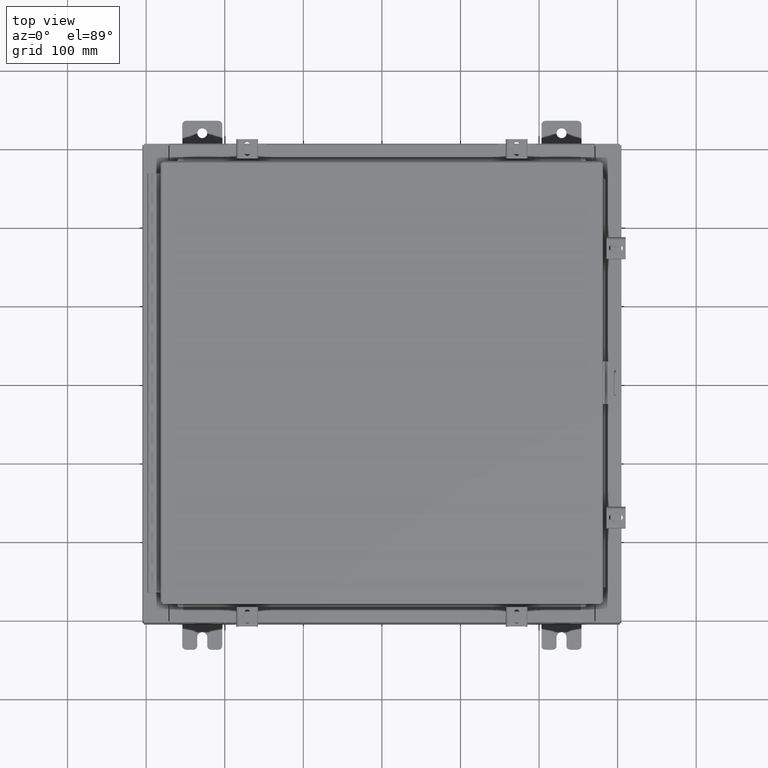
[diagram: clean part render]
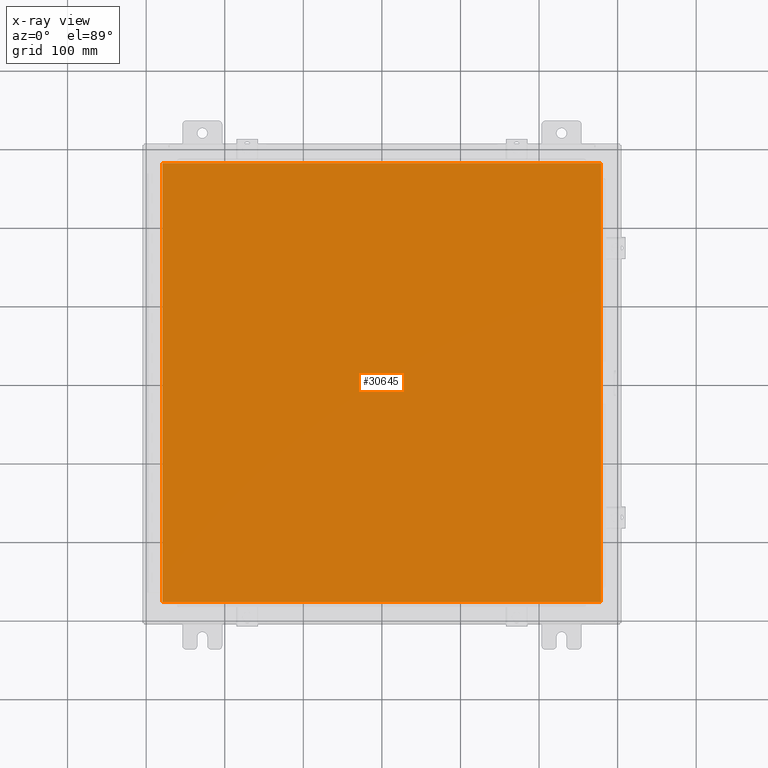
[diagram: x-ray — body ghosted, one internal face saturated and labeled with its STEP entity id]
A machine part, top view, then the same camera in x-ray: the body is ghosted and one INTERNAL B-rep face — a face not visible from any outside direction — is saturated and labeled: STEP entity #30645.
In plain terms, the highlighted planar face has unit normal (0, 0, -1).
Its self-contained STEP definition (entity closure, byte-faithful):
#184 = DIRECTION ( 'NONE',  ( 1.000000000000000000, -0.0000000000000000000, -0.0000000000000000000 ) ) ;
#1644 = ORIENTED_EDGE ( 'NONE', *, *, #19277, .F. ) ;
#1978 = VERTEX_POINT ( 'NONE', #30039 ) ;
#2595 = PLANE ( 'NONE',  #22061 ) ;
#6513 = CARTESIAN_POINT ( 'NONE',  ( 10.99029999999999600, 11.00629999999999600, -0.07470000000000000300 ) ) ;
#6542 = VECTOR ( 'NONE', #184, 39.37007874015748100 ) ;
#7750 = ORIENTED_EDGE ( 'NONE', *, *, #20369, .F. ) ;
#7854 = LINE ( 'NONE', #14620, #14490 ) ;
#10169 = DIRECTION ( 'NONE',  ( -1.000000000000000000, 0.0000000000000000000, -0.0000000000000000000 ) ) ;
#11321 = ORIENTED_EDGE ( 'NONE', *, *, #23048, .F. ) ;
#12610 = DIRECTION ( 'NONE',  ( 0.0000000000000000000, -1.000000000000000000, 0.0000000000000000000 ) ) ;
#13232 = FACE_OUTER_BOUND ( 'NONE', #19389, .T. ) ;
#13936 = LINE ( 'NONE', #27599, #15512 ) ;
#14490 = VECTOR ( 'NONE', #29652, 39.37007874015748100 ) ;
#14620 = CARTESIAN_POINT ( 'NONE',  ( 10.99029999999999800, 11.00629999999999600, -0.07470000000000019700 ) ) ;
#15074 = CARTESIAN_POINT ( 'NONE',  ( 0.0000000000000000000, 0.0000000000000000000, -0.07470000000000000300 ) ) ;
#15185 = CARTESIAN_POINT ( 'NONE',  ( -10.99030000000000000, -11.00630000000000100, -0.07469999999999910000 ) ) ;
#15358 = CARTESIAN_POINT ( 'NONE',  ( 10.99029999999999600, -11.00630000000000100, -0.07470000000000019700 ) ) ;
#15512 = VECTOR ( 'NONE', #12610, 39.37007874015748100 ) ;
#19277 = EDGE_CURVE ( 'NONE', #1978, #25422, #31805, .T. ) ;
#19389 = EDGE_LOOP ( 'NONE', ( #1644, #29878, #11321, #7750 ) ) ;
#20369 = EDGE_CURVE ( 'NONE', #25422, #28747, #7854, .T. ) ;
#22056 = CARTESIAN_POINT ( 'NONE',  ( -10.99030000000000000, -11.00630000000000100, -0.07470000000000000300 ) ) ;
#22061 = AXIS2_PLACEMENT_3D ( 'NONE', #15074, #25156, #10169 ) ;
#23048 = EDGE_CURVE ( 'NONE', #28747, #31149, #13936, .T. ) ;
#25156 = DIRECTION ( 'NONE',  ( 0.0000000000000000000, 0.0000000000000000000, -1.000000000000000000 ) ) ;
#25325 = DIRECTION ( 'NONE',  ( 0.0000000000000000000, 1.000000000000000000, 0.0000000000000000000 ) ) ;
#25422 = VERTEX_POINT ( 'NONE', #6513 ) ;
#25758 = LINE ( 'NONE', #15185, #6542 ) ;
#27599 = CARTESIAN_POINT ( 'NONE',  ( -10.99030000000000500, 11.00629999999999600, -0.07470000000000133500 ) ) ;
#28244 = CARTESIAN_POINT ( 'NONE',  ( -10.99030000000000100, 11.00629999999999600, -0.07470000000000000300 ) ) ;
#28747 = VERTEX_POINT ( 'NONE', #28244 ) ;
#29652 = DIRECTION ( 'NONE',  ( -1.000000000000000000, -0.0000000000000000000, -0.0000000000000000000 ) ) ;
#29878 = ORIENTED_EDGE ( 'NONE', *, *, #30652, .F. ) ;
#30039 = CARTESIAN_POINT ( 'NONE',  ( 10.99029999999999600, -11.00630000000000100, -0.07470000000000000300 ) ) ;
#30645 = ADVANCED_FACE ( 'NONE', ( #13232 ), #2595, .T. ) ;
#30652 = EDGE_CURVE ( 'NONE', #31149, #1978, #25758, .T. ) ;
#31034 = VECTOR ( 'NONE', #25325, 39.37007874015748100 ) ;
#31149 = VERTEX_POINT ( 'NONE', #22056 ) ;
#31805 = LINE ( 'NONE', #15358, #31034 ) ;